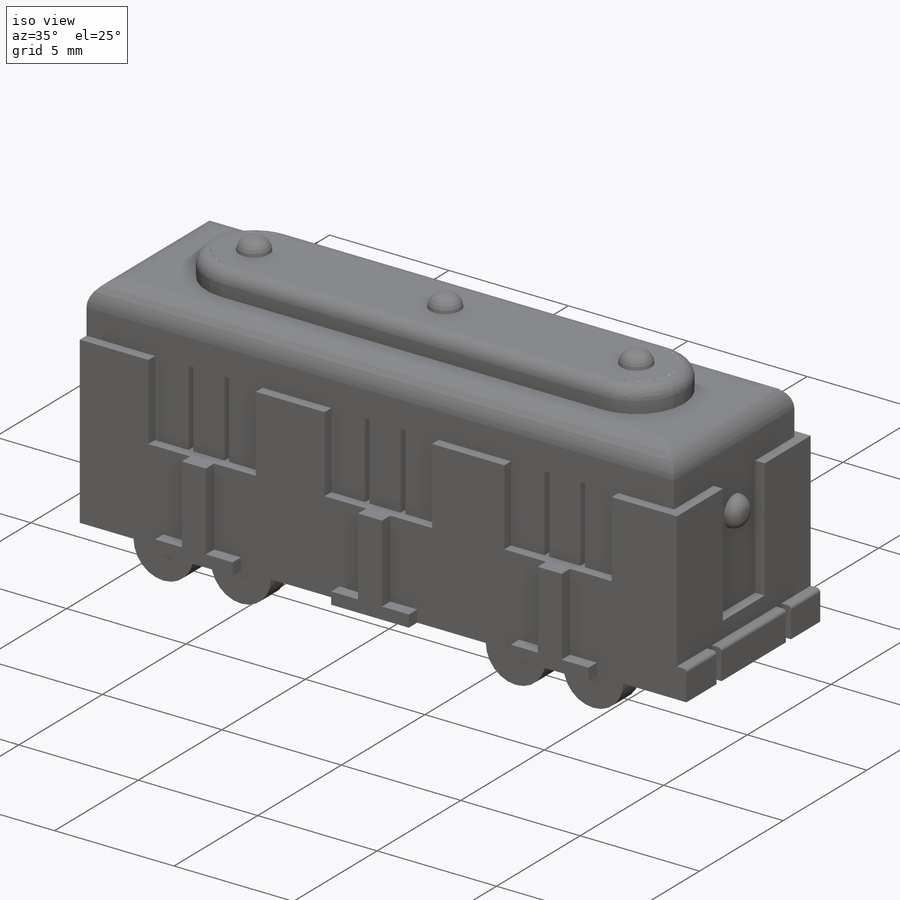
[diagram: iso view]
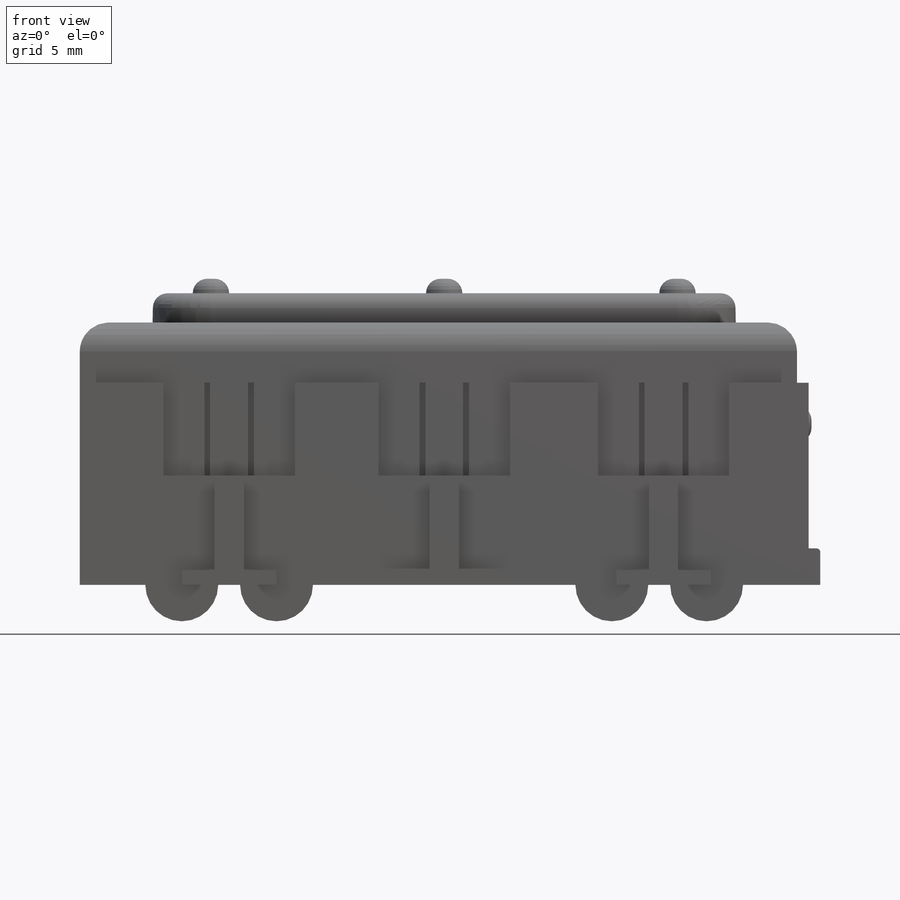
[diagram: front view]
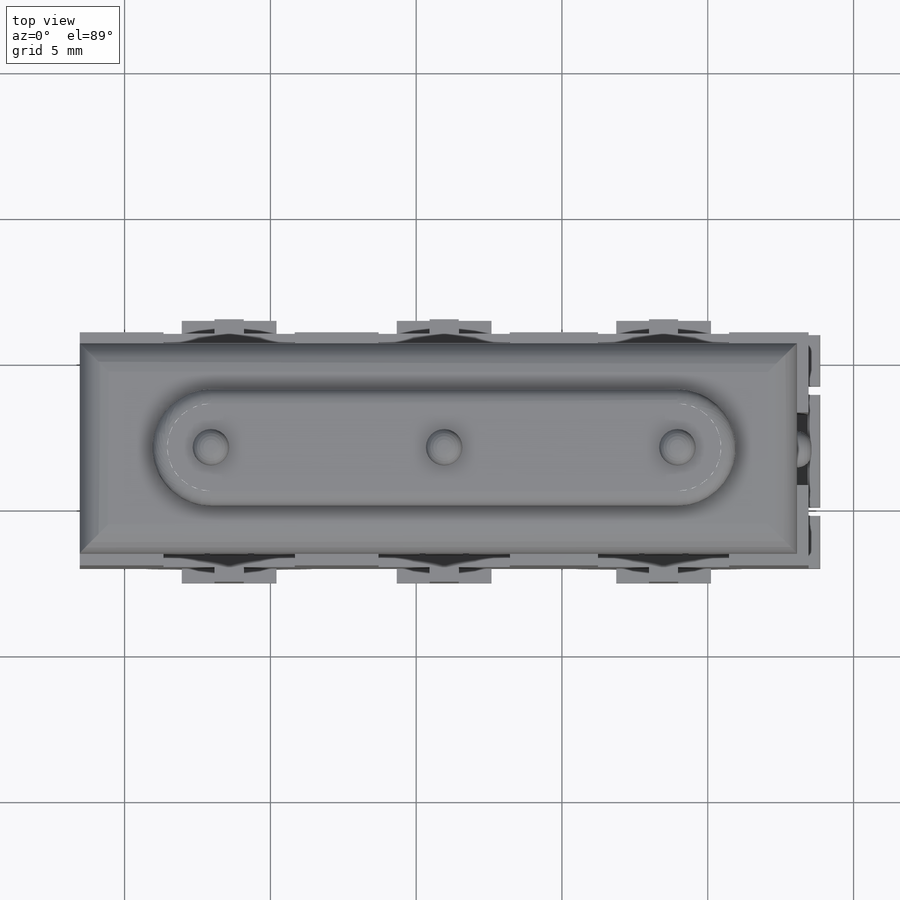
[diagram: top view]
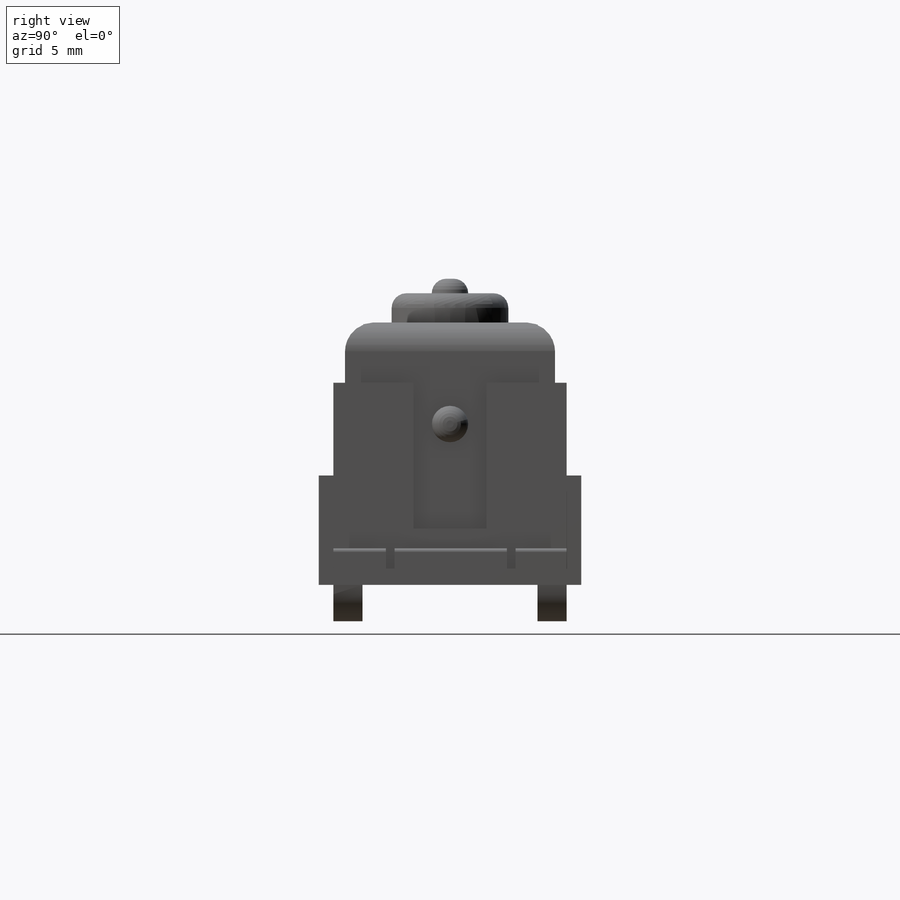
[diagram: right view]
SOLIDWORKS PART (.sldprt)
format: sldprt  version: not decoded by parser v0  size: 667,136 bytes
history: native  units: mm
features: sketch x15, extrude x10, fillet x5, cut_extrude x5, plane x2, material x1, mirror x1 (+12 scaffold rows collapsed)
feature tree (51):
  scaffold x12  (default folders/planes/origin — collapsed)
  material  "Material <not specified>"
  sketch  "Sketch1"  dims[D1=25.0mm D2=8.0mm]
  extrude  "Boss-Extrude1"  Depth=1mm
  sketch  "Sketch2"  dims[c1.D1=16.0mm c1.D2=4.0mm c1.D3=4.5mm c1.D4=2.0mm c2.D3=4.5mm]
  extrude  "Boss-Extrude2"  Depth=1mm
  fillet  "Fillet1"  Radius=0.5mm
  sketch  "Sketch3"  dims[D1=23.0mm D2=1.0mm D3=6.0mm D4=1.0mm]
  extrude  "Boss-Extrude3"  Depth=8mm
  sketch  "Sketch4"  dims[D1=2.5mm D3=2.5mm D4=2.5mm D5=2.5mm D2=3.5mm D6=3.5mm D7=3.25mm D8=3.25mm]
  extrude  "Boss-Extrude4"  [1 undecoded]
  sketch  "Sketch5"  dims[c1.D1=2.5mm c1.D2=2.5mm c1.D3=2.5mm c1.D4=2.5mm c2.D1=3.5mm c2.D2=3.25mm c2.D3=3.5mm c2.D5=3.25mm]
  extrude  "Boss-Extrude5"  [1 undecoded]
  sketch  "Sketch6"  dims[D1=1.25mm]
  extrude  "Boss-Extrude6"  Depth=0.4mm
  sketch  "Sketch7"  dims[D1=1.25mm D2=8.0mm D3=8.0mm]
  extrude  "Boss-Extrude7"  Depth=0.5mm
  fillet  "Fillet4"  Radius=0.5mm
  sketch  "Sketch9"  dims[c1.D1=3.25mm c1.D2=0.5mm c1.D3=3.25mm c1.D4=0.875mm c1.D5=3.75mm c2.D4=1.0mm c2.D6=1.25mm c2.D7=1.25mm c3.D6=3.25mm c3.D7=0.5mm c3.D8=3.25mm c3.D9=1.0mm c3.D10=0.0mm c3.D11=3.5mm c3.D12=3.25mm c3.D13=0.5mm c3.D14=3.25mm c3.D15=1.0mm c3.D16=0.0mm c3.D17=4.125mm c3.D18=0.5mm]
  extrude  "Boss-Extrude9"  Depth=0.5mm
  sketch  "Sketch10"  dims[D1=1.75mm D2=1.75mm D3=3.25mm D4=3.25mm D5=3.25mm D6=0.0mm D7=0.0mm D8=1.75mm D9=1.75mm D10=1.75mm D11=1.75mm]
  cut_extrude  "Cut-Extrude1"  Depth=0.4mm
  sketch  "Sketch11"  dims[D1=0.0mm]
  cut_extrude  "Cut-Extrude2"  Depth=0.4mm
  sketch  "Sketch12"  dims[c1.D1=0.2mm c1.D2=0.2mm c1.D3=0.0mm c1.D4=~1.172316mm c1.D5=~3.181217mm c2.D4=1.4mm c2.D5=1.4mm c2.D6=0.0mm c2.D7=0.0mm c2.D8=1.4mm c2.D9=1.4mm c2.D10=0.2mm c2.D11=0.2mm c2.D3=0.15mm c3.D6=0.15mm c3.D7=1.4mm c3.D12=1.4mm c3.D13=0.0mm c3.D14=0.0mm c3.D15=0.0mm]
  cut_extrude  "Cut-Extrude3"  Depth=0.4mm
  plane  "Plane1"  Offset=3mm
  mirror  "Mirror1"
  sketch  "Sketch16"  dims[D1=2.5mm D2=5.0mm]
  cut_extrude  "Cut-Extrude4"  Depth=0.4mm
  sketch  "Sketch17"  dims[D1=1.25mm]
  extrude  "Boss-Extrude12"  Depth=0.5mm
  fillet  "Fillet8"  Radius=0.5mm
  sketch  "Sketch19"  dims[D1=0.3mm D2=1.8mm D3=1.75mm]
  cut_extrude  "Cut-Extrude5"  Depth=0.4mm
  fillet  "Fillet9"  Radius=0.125mm
  plane  "Plane2"  Offset=11.5mm
  fillet  "Fillet10"  Radius=1mm
  sketch  "Sketch20"
  extrude  "Boss-Extrude13"  [1 undecoded]
decode coverage: 31 of 36 modeling features carry decoded parameters
note: ~ marks probable driven/reference dimensions
note: 3 parameter values undecoded
summary: no parameter record found for 3 features
note: suppression state not decoded; provenance and decode notes live in map.json
